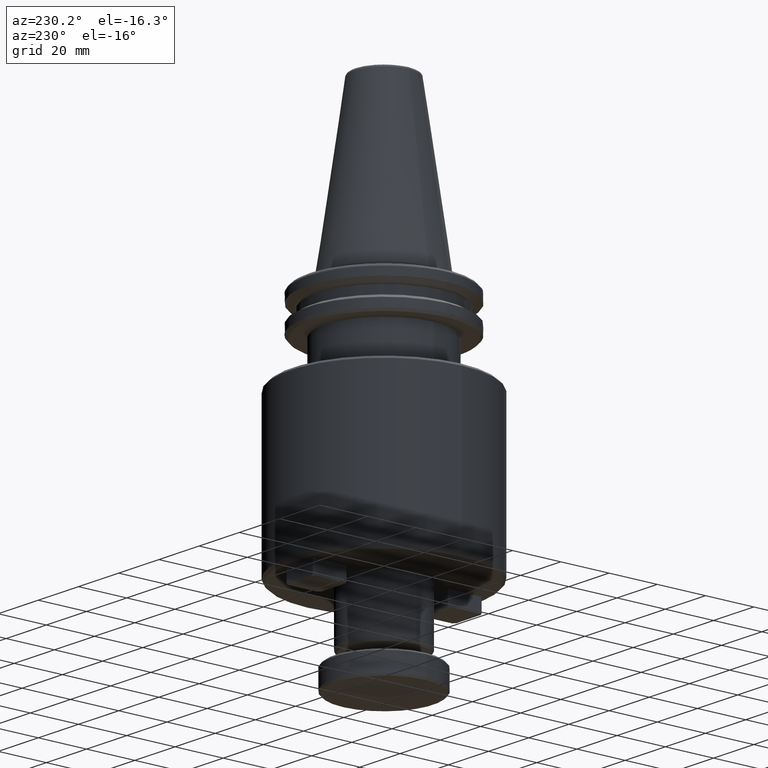
[diagram: clean part render]
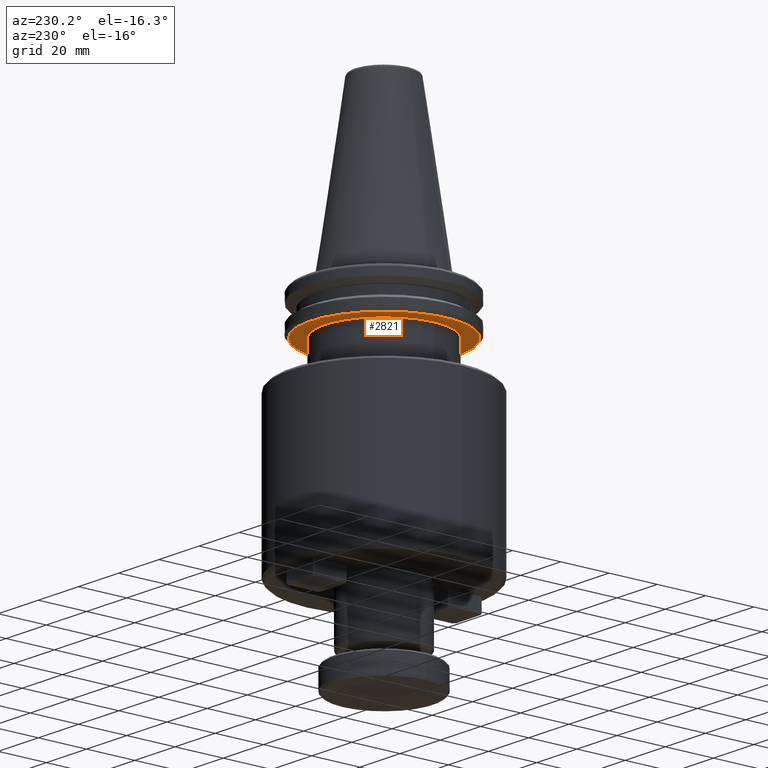
[diagram: same view with one face highlighted and labeled with its STEP entity id]
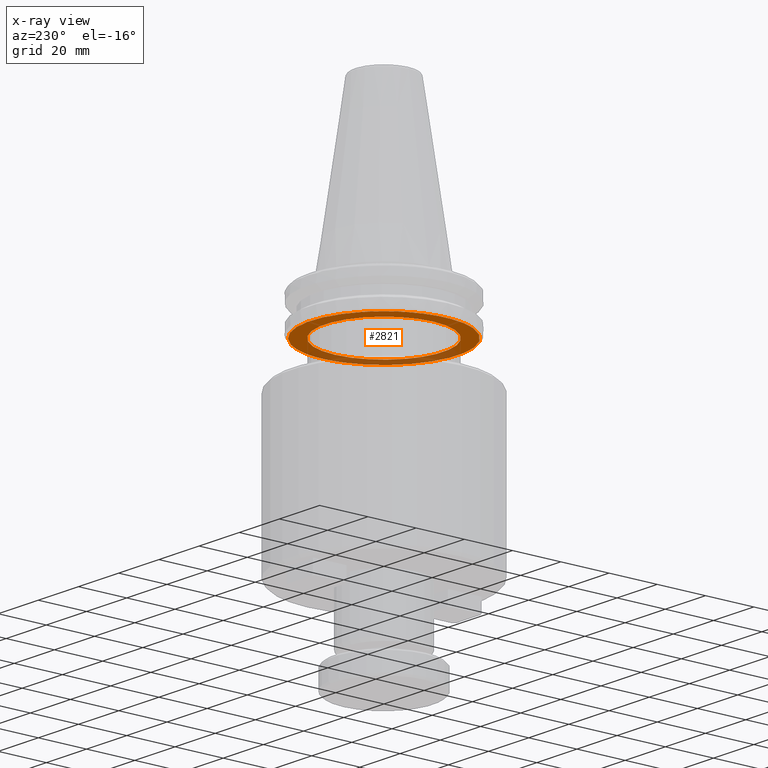
[diagram: x-ray of the same camera — body ghosted, the highlighted face saturated]
A machine part, auxiliary view. The second image highlights one B-rep face of the part: STEP entity #2821.
The next image is the same camera in x-ray: the body ghosted, the highlighted face saturated — about 31% of this face is hidden behind the body in this view.
In plain terms, the highlighted planar face has unit normal (0, 0, -1).
Its self-contained STEP definition (entity closure, byte-faithful):
#5 = CARTESIAN_POINT ( 'NONE',  ( -28.55403585648227600, -11.07200170706531000, -19.10000000000000100 ) ) ;
#9 = CARTESIAN_POINT ( 'NONE',  ( 28.79848820868595600, 10.36927195262887700, -19.10000000000000500 ) ) ;
#18 = CARTESIAN_POINT ( 'NONE',  ( 27.46611760510352000, 13.47920850658973700, -19.10000000000000900 ) ) ;
#60 = CARTESIAN_POINT ( 'NONE',  ( 5.798126224598956200, 30.03039269424756300, -19.10000000000000100 ) ) ;
#77 = CARTESIAN_POINT ( 'NONE',  ( -29.50593695887968700, 8.050011640415894100, -19.09999999877758000 ) ) ;
#79 = EDGE_CURVE ( 'NONE', #3242, #691, #2342, .T. ) ;
#102 = EDGE_CURVE ( 'NONE', #1239, #1651, #3035, .T. ) ;
#108 = CARTESIAN_POINT ( 'NONE',  ( 6.256069620680725600, 29.93772805485906800, -19.10000000000000900 ) ) ;
#130 = CARTESIAN_POINT ( 'NONE',  ( 0.0000000000000000000, 2.166680460328873200E-015, -19.10000000000000500 ) ) ;
#150 = CARTESIAN_POINT ( 'NONE',  ( -17.51886799372202900, 25.09995254383747500, -19.10000000000000500 ) ) ;
#167 = CARTESIAN_POINT ( 'NONE',  ( -29.50593695887968700, 8.050011640415894100, -19.09999999877758000 ) ) ;
#192 = B_SPLINE_CURVE_WITH_KNOTS ( 'NONE', 3,
 ( #3825, #150, #2657, #3818, #2882, #2408, #3834, #3499, #3605, #3476, #3909, #1616, #3015, #2294, #1503, #3145, #1476, #2312, #1535, #1157, #2358, #2931, #3758, #1837, #3505, #2247, #3094, #4167, #1391, #4050, #983, #1195, #308, #60, #3748, #2814, #108, #2239, #2172, #3416, #2524, #3188, #3197, #2049, #4151, #3828, #4121, #3276, #2434, #1027, #848, #3872, #1806, #3529, #4135, #3492, #3620, #1887, #1093, #1444, #2538, #2837, #3241, #3366, #4053, #2576, #1172, #4180, #255, #3904, #3388, #4204, #3454, #3485, #3810, #18, #3284, #3444, #3357, #3379, #4262, #9, #3814, #3498 ),
 .UNSPECIFIED., .F., .F.,
 ( 4, 1, 1, 1, 1, 2, 2, 1, 1, 2, 2, 2, 1, 1, 2, 2, 1, 1, 1, 2, 2, 1, 1, 1, 2, 2, 2, 1, 1, 1, 2, 2, 1, 1, 1, 2, 2, 1, 1, 2, 2, 2, 1, 1, 2, 2, 1, 1, 1, 2, 2, 1, 1, 1, 2, 2, 4 ),
 ( 0.0000000000000000000, 0.06250000000000043000, 0.09375000000000063800, 0.1093750000000007500, 0.1171875000000008000, 0.1210937500000008700, 0.1250000000000009400, 0.1562500000000016900, 0.1718750000000020300, 0.1796875000000022200, 0.1875000000000024100, 0.2500000000000042200, 0.2812500000000051600, 0.2968750000000056100, 0.3046875000000058300, 0.3125000000000060500, 0.3437500000000069400, 0.3593750000000073800, 0.3671875000000076100, 0.3710937500000076600, 0.3750000000000077700, 0.4062500000000085500, 0.4218750000000089900, 0.4296875000000092100, 0.4335937500000093800, 0.4375000000000094900, 0.5000000000000109900, 0.5312500000000117700, 0.5468750000000121000, 0.5546875000000122100, 0.5585937500000123200, 0.5625000000000123200, 0.5937500000000121000, 0.6093750000000119900, 0.6171875000000117700, 0.6210937500000117700, 0.6250000000000116600, 0.6562500000000113200, 0.6718750000000111000, 0.6796875000000108800, 0.6875000000000107700, 0.7500000000000093300, 0.7812500000000086600, 0.7968750000000082200, 0.8046875000000079900, 0.8125000000000076600, 0.8437500000000067700, 0.8593750000000063300, 0.8671875000000061100, 0.8710937500000060000, 0.8750000000000058800, 0.9062500000000048800, 0.9218750000000044400, 0.9296875000000043300, 0.9335937500000041100, 0.9375000000000038900, 1.000000000000000000 ),
 .UNSPECIFIED. ) ;
#195 = EDGE_CURVE ( 'NONE', #324, #3242, #1668, .T. ) ;
#250 = CARTESIAN_POINT ( 'NONE',  ( 27.01453231070431500, -14.38112937620777400, -19.10000000000000900 ) ) ;
#255 = CARTESIAN_POINT ( 'NONE',  ( 25.60981177358732800, 16.74023069123413500, -19.10000000000000500 ) ) ;
#260 = CARTESIAN_POINT ( 'NONE',  ( 22.45416143053250800, -20.76589565598027000, -19.10000000000000500 ) ) ;
#281 = CARTESIAN_POINT ( 'NONE',  ( 10.24327173504158100, -28.81937833701286400, -19.10000000000000500 ) ) ;
#294 = CARTESIAN_POINT ( 'NONE',  ( 3.166151006705770800, -30.46140382597060600, -19.10000000000001200 ) ) ;
#303 = B_SPLINE_CURVE_WITH_KNOTS ( 'NONE', 3,
 ( #77, #3423, #2773, #760, #3115, #1114 ),
 .UNSPECIFIED., .F., .F.,
 ( 4, 2, 4 ),
 ( 0.0000000000000000000, 0.5000000000000000000, 1.000000000000000000 ),
 .UNSPECIFIED. ) ;
#306 = CARTESIAN_POINT ( 'NONE',  ( -8.850750154841392700, -29.27696876187939500, -19.10000000000000500 ) ) ;
#308 = CARTESIAN_POINT ( 'NONE',  ( 5.264802480930863600, 30.13058555675097900, -19.10000000000000100 ) ) ;
#322 = CARTESIAN_POINT ( 'NONE',  ( -17.19359987793792800, -25.35249706495551100, -19.10000000000000900 ) ) ;
#324 = VERTEX_POINT ( 'NONE', #1029 ) ;
#340 = CARTESIAN_POINT ( 'NONE',  ( -25.40531514043783900, -17.02859819238312900, -19.10000000000000500 ) ) ;
#359 = CARTESIAN_POINT ( 'NONE',  ( -29.50593695887968700, -8.050011640415892300, -19.09999999877758000 ) ) ;
#416 = DIRECTION ( 'NONE',  ( 1.000000000000000000, 0.0000000000000000000, 0.0000000000000000000 ) ) ;
#422 = CARTESIAN_POINT ( 'NONE',  ( 0.0000000000000000000, 0.0000000000000000000, -19.10000000000000500 ) ) ;
#445 = DIRECTION ( 'NONE',  ( -0.0000000000000000000, -0.0000000000000000000, -1.000000000000000000 ) ) ;
#480 = DIRECTION ( 'NONE',  ( -1.000000000000000000, 0.0000000000000000000, -0.0000000000000000000 ) ) ;
#510 = CARTESIAN_POINT ( 'NONE',  ( 29.50593695887965900, 8.050011640415990000, -19.09999999877758000 ) ) ;
#594 = CARTESIAN_POINT ( 'NONE',  ( 25.91506848432963000, -16.24456535706762800, -19.10000000000000500 ) ) ;
#608 = CARTESIAN_POINT ( 'NONE',  ( 19.93308098988654800, -23.26029377377305400, -19.10000000000000900 ) ) ;
#618 = CARTESIAN_POINT ( 'NONE',  ( 9.741308101238560700, -28.99155239477984500, -19.10000000000000900 ) ) ;
#630 = CARTESIAN_POINT ( 'NONE',  ( -0.7936655208069568500, -30.58432798036122000, -19.10000000000000100 ) ) ;
#646 = CARTESIAN_POINT ( 'NONE',  ( -9.343182468531940900, -29.12229317852812500, -19.10000000000000500 ) ) ;
#658 = CARTESIAN_POINT ( 'NONE',  ( -20.23907096310340100, -22.95838911900774100, -19.10000000000000500 ) ) ;
#669 = CARTESIAN_POINT ( 'NONE',  ( -25.49448276515892400, -16.89479980230323600, -19.10000000000000900 ) ) ;
#691 = VERTEX_POINT ( 'NONE', #510 ) ;
#760 = CARTESIAN_POINT ( 'NONE',  ( -26.56612284950205100, 15.28016086959555500, -19.10000000000000500 ) ) ;
#792 = PLANE ( 'NONE',  #1988 ) ;
#803 = DIRECTION ( 'NONE',  ( 1.000000000000000000, 0.0000000000000000000, 0.0000000000000000000 ) ) ;
#839 = AXIS2_PLACEMENT_3D ( 'NONE', #3671, #3884, #3900 ) ;
#848 = CARTESIAN_POINT ( 'NONE',  ( 16.18968749047009200, 25.94803225022423700, -19.10000000000000900 ) ) ;
#857 = CIRCLE ( 'NONE', #839, 24.50000000000000000 ) ;
#923 = CARTESIAN_POINT ( 'NONE',  ( 29.50593695887968700, -8.050011640415894100, -19.09999999877758000 ) ) ;
#935 = CARTESIAN_POINT ( 'NONE',  ( 25.63623530936496000, -16.67892256050461000, -19.10000000000000500 ) ) ;
#944 = CARTESIAN_POINT ( 'NONE',  ( 16.82180190648200500, -25.56823429586928900, -19.10000000000000500 ) ) ;
#963 = CARTESIAN_POINT ( 'NONE',  ( 9.588757991871142700, -29.04235927048969000, -19.10000000000000100 ) ) ;
#975 = CARTESIAN_POINT ( 'NONE',  ( 24.50000000000000000, 0.0000000000000000000, -19.10000000000000500 ) ) ;
#981 = CARTESIAN_POINT ( 'NONE',  ( -3.359542261740482900, -30.40384640239971500, -19.10000000000000500 ) ) ;
#983 = CARTESIAN_POINT ( 'NONE',  ( 3.271282400886674800, 30.41520625110938200, -19.10000000000000500 ) ) ;
#984 = CIRCLE ( 'NONE', #1962, 30.58435880040995200 ) ;
#995 = CARTESIAN_POINT ( 'NONE',  ( -9.489238364085435900, -29.07503083623364400, -19.10000000000000900 ) ) ;
#1004 = CARTESIAN_POINT ( 'NONE',  ( -21.86129013470800300, -21.39082914621904400, -19.10000000000000100 ) ) ;
#1023 = CARTESIAN_POINT ( 'NONE',  ( -26.61736808516047900, -15.10355864978086500, -19.10000000000000500 ) ) ;
#1027 = CARTESIAN_POINT ( 'NONE',  ( 15.99211500375794700, 26.07096171698068000, -19.10000000000000900 ) ) ;
#1029 = CARTESIAN_POINT ( 'NONE',  ( 29.50593695887968700, -8.050011640415894100, -19.09999999877758000 ) ) ;
#1093 = CARTESIAN_POINT ( 'NONE',  ( 19.38055795302008400, 23.66050113822976500, -19.10000000000001200 ) ) ;
#1103 = EDGE_LOOP ( 'NONE', ( #4044, #2639, #3507, #3929, #1299, #1295, #1330 ) ) ;
#1114 = CARTESIAN_POINT ( 'NONE',  ( -24.35471234555324600, 18.50002675126633300, -19.09999999877758000 ) ) ;
#1122 = CIRCLE ( 'NONE', #1685, 30.58435880040995200 ) ;
#1157 = CARTESIAN_POINT ( 'NONE',  ( -2.229972106739516000, 30.50583071842478200, -19.10000000000000500 ) ) ;
#1172 = CARTESIAN_POINT ( 'NONE',  ( 24.61278002360990800, 18.15588099004128300, -19.10000000000000500 ) ) ;
#1195 = CARTESIAN_POINT ( 'NONE',  ( 4.194626064597124500, 30.30646449917461300, -19.10000000000000500 ) ) ;
#1239 = VERTEX_POINT ( 'NONE', #975 ) ;
#1268 = CARTESIAN_POINT ( 'NONE',  ( 28.44748858146412100, -11.24368615697392600, -19.10000000000000100 ) ) ;
#1277 = CARTESIAN_POINT ( 'NONE',  ( 25.55219655712748800, -16.80738867178014600, -19.10000000000000900 ) ) ;
#1295 = ORIENTED_EDGE ( 'NONE', *, *, #79, .F. ) ;
#1298 = CARTESIAN_POINT ( 'NONE',  ( 14.88253584773120200, -26.72066063288397000, -19.10000000000000100 ) ) ;
#1299 = ORIENTED_EDGE ( 'NONE', *, *, #2507, .T. ) ;
#1307 = CARTESIAN_POINT ( 'NONE',  ( 7.565125950941371100, -29.65418414010071800, -19.10000000000000500 ) ) ;
#1317 = CARTESIAN_POINT ( 'NONE',  ( -4.391022105728267500, -30.26774995785368500, -19.10000000000000500 ) ) ;
#1330 = ORIENTED_EDGE ( 'NONE', *, *, #195, .F. ) ;
#1332 = CARTESIAN_POINT ( 'NONE',  ( -11.53725264662773900, -28.34718016712044900, -19.10000000000000900 ) ) ;
#1351 = CARTESIAN_POINT ( 'NONE',  ( -22.23347045905034500, -21.00201711043238700, -19.10000000000000100 ) ) ;
#1365 = CARTESIAN_POINT ( 'NONE',  ( -27.60161413460691900, -13.17678050942531300, -19.10000000000001200 ) ) ;
#1391 = CARTESIAN_POINT ( 'NONE',  ( 2.495993614183678500, 30.48239565653807800, -19.10000000000000500 ) ) ;
#1401 = CARTESIAN_POINT ( 'NONE',  ( -24.35471234555324600, 18.50002675126633300, -19.09999999877758000 ) ) ;
#1441 = CARTESIAN_POINT ( 'NONE',  ( -18.50002675126633300, 24.35471234555324600, -19.09999999877758000 ) ) ;
#1444 = CARTESIAN_POINT ( 'NONE',  ( 20.48123999505939400, 22.74936446789017100, -19.10000000000000100 ) ) ;
#1448 = CARTESIAN_POINT ( 'NONE',  ( -24.50000000000000000, 3.000384657911015500E-015, -19.10000000000000500 ) ) ;
#1476 = CARTESIAN_POINT ( 'NONE',  ( -6.159607642682074100, 29.98451923137153200, -19.10000000000000500 ) ) ;
#1503 = CARTESIAN_POINT ( 'NONE',  ( -8.767786026824518700, 29.30104552520869300, -19.10000000000000500 ) ) ;
#1535 = CARTESIAN_POINT ( 'NONE',  ( -3.335826507667983200, 30.41349938460541600, -19.10000000000000100 ) ) ;
#1565 = EDGE_CURVE ( 'NONE', #1651, #1239, #857, .T. ) ;
#1595 = CARTESIAN_POINT ( 'NONE',  ( 28.04473044301726900, -12.20290262157235800, -19.10000000000000100 ) ) ;
#1613 = CARTESIAN_POINT ( 'NONE',  ( 24.31095900104777700, -18.59161355311120500, -19.10000000000000900 ) ) ;
#1616 = CARTESIAN_POINT ( 'NONE',  ( -9.668279344121133400, 29.01896080072954100, -19.10000000000000500 ) ) ;
#1624 = AXIS2_PLACEMENT_3D ( 'NONE', #422, #445, #416 ) ;
#1627 = CARTESIAN_POINT ( 'NONE',  ( 14.40947314747780600, -26.97737969063206300, -19.10000000000000500 ) ) ;
#1635 = CARTESIAN_POINT ( 'NONE',  ( 5.447226833889317300, -30.09658397973939300, -19.10000000000000500 ) ) ;
#1639 = DIRECTION ( 'NONE',  ( -0.0000000000000000000, -0.0000000000000000000, 1.000000000000000000 ) ) ;
#1646 = CARTESIAN_POINT ( 'NONE',  ( 0.0000000000000000000, 0.0000000000000000000, -19.09999999877758000 ) ) ;
#1651 = VERTEX_POINT ( 'NONE', #1448 ) ;
#1655 = CARTESIAN_POINT ( 'NONE',  ( -4.636279539811212700, -30.23090493186514000, -19.10000000000000100 ) ) ;
#1665 = DIRECTION ( 'NONE',  ( -0.0000000000000000000, -0.0000000000000000000, 1.000000000000000000 ) ) ;
#1667 = DIRECTION ( 'NONE',  ( 1.000000000000000000, 0.0000000000000000000, 0.0000000000000000000 ) ) ;
#1668 = CIRCLE ( 'NONE', #3261, 30.58435880040995200 ) ;
#1671 = CARTESIAN_POINT ( 'NONE',  ( -13.55750927079556900, -27.41669403125807100, -19.10000000000000500 ) ) ;
#1684 = CARTESIAN_POINT ( 'NONE',  ( -22.95981042903576300, -20.22301021334099100, -19.10000000000000900 ) ) ;
#1685 = AXIS2_PLACEMENT_3D ( 'NONE', #3740, #1665, #3789 ) ;
#1700 = CARTESIAN_POINT ( 'NONE',  ( -27.81895210720312800, -12.70861568514636500, -19.10000000000000500 ) ) ;
#1806 = CARTESIAN_POINT ( 'NONE',  ( 16.38572052405262600, 25.82468945861612000, -19.10000000000000100 ) ) ;
#1837 = CARTESIAN_POINT ( 'NONE',  ( -0.4908188656923748200, 30.58687863642091600, -19.10000000000000900 ) ) ;
#1887 = CARTESIAN_POINT ( 'NONE',  ( 19.25930180620994000, 23.75930152089461000, -19.10000000000001200 ) ) ;
#1926 = CARTESIAN_POINT ( 'NONE',  ( 27.94464134489557200, -12.42979159005786200, -19.10000000000001200 ) ) ;
#1933 = CARTESIAN_POINT ( 'NONE',  ( 22.88153702451384300, -20.29572449130178000, -19.10000000000000100 ) ) ;
#1950 = CARTESIAN_POINT ( 'NONE',  ( 13.46675684607612000, -27.47306857769193300, -19.10000000000000900 ) ) ;
#1962 = AXIS2_PLACEMENT_3D ( 'NONE', #4152, #3567, #1667 ) ;
#1967 = CARTESIAN_POINT ( 'NONE',  ( 4.938364931540699700, -30.18303432026915800, -19.10000000000000500 ) ) ;
#1984 = CARTESIAN_POINT ( 'NONE',  ( -5.550699401406691700, -30.08776695510170300, -19.10000000000000500 ) ) ;
#1988 = AXIS2_PLACEMENT_3D ( 'NONE', #130, #2488, #480 ) ;
#1995 = CARTESIAN_POINT ( 'NONE',  ( -14.03061632106972200, -27.17633901377901000, -19.10000000000000900 ) ) ;
#2017 = CARTESIAN_POINT ( 'NONE',  ( -24.67913322280990200, -18.07380832753302600, -19.10000000000000500 ) ) ;
#2033 = CARTESIAN_POINT ( 'NONE',  ( -27.88382002489398900, -12.56563911166203700, -19.10000000000000900 ) ) ;
#2049 = CARTESIAN_POINT ( 'NONE',  ( 12.92802695592982500, 27.71772311958008600, -19.10000000000000900 ) ) ;
#2121 = FACE_OUTER_BOUND ( 'NONE', #1103, .T. ) ;
#2162 = VERTEX_POINT ( 'NONE', #3723 ) ;
#2172 = CARTESIAN_POINT ( 'NONE',  ( 8.686726280910074000, 29.34982920450148600, -19.10000000000000900 ) ) ;
#2239 = CARTESIAN_POINT ( 'NONE',  ( 7.517538265328743900, 29.67087649393396000, -19.10000000000000500 ) ) ;
#2247 = CARTESIAN_POINT ( 'NONE',  ( 1.553459315967854200, 30.54770834860802300, -19.10000000000000900 ) ) ;
#2257 = CARTESIAN_POINT ( 'NONE',  ( 27.56587331839861600, -13.27428387458943800, -19.09999999999999800 ) ) ;
#2273 = CARTESIAN_POINT ( 'NONE',  ( 22.52513206187470700, -20.68888644021010800, -19.10000000000000900 ) ) ;
#2292 = CARTESIAN_POINT ( 'NONE',  ( 10.94079956306805100, -28.56608249322954800, -19.10000000000000900 ) ) ;
#2294 = CARTESIAN_POINT ( 'NONE',  ( -8.917516567687371800, 29.25582015750815400, -19.10000000000000500 ) ) ;
#2304 = CARTESIAN_POINT ( 'NONE',  ( 4.783350766199017600, -30.20798338819395200, -19.10000000000000500 ) ) ;
#2312 = CARTESIAN_POINT ( 'NONE',  ( -4.279122215993030700, 30.29015284362106900, -19.10000000000000500 ) ) ;
#2318 = CARTESIAN_POINT ( 'NONE',  ( -8.158427338735364700, -29.48125659895528400, -19.10000000000000500 ) ) ;
#2333 = CARTESIAN_POINT ( 'NONE',  ( -15.74490649238654400, -26.27680638947031300, -19.10000000000000900 ) ) ;
#2342 = CIRCLE ( 'NONE', #2483, 30.58435880040995200 ) ;
#2351 = CARTESIAN_POINT ( 'NONE',  ( -25.31652938757393300, -17.16082103678996200, -19.10000000000000100 ) ) ;
#2358 = CARTESIAN_POINT ( 'NONE',  ( -1.754889633223906300, 30.53434994063401200, -19.10000000000000500 ) ) ;
#2362 = CARTESIAN_POINT ( 'NONE',  ( -29.08795742227681900, -9.581875916355663500, -19.09999999999999800 ) ) ;
#2373 = EDGE_CURVE ( 'NONE', #4273, #4184, #1122, .T. ) ;
#2393 = ORIENTED_EDGE ( 'NONE', *, *, #102, .F. ) ;
#2408 = CARTESIAN_POINT ( 'NONE',  ( -12.65743148084894200, 27.84302147053579500, -19.10000000000000500 ) ) ;
#2434 = CARTESIAN_POINT ( 'NONE',  ( 15.52813128130545700, 26.35237235011442500, -19.10000000000000900 ) ) ;
#2483 = AXIS2_PLACEMENT_3D ( 'NONE', #1646, #1639, #803 ) ;
#2488 = DIRECTION ( 'NONE',  ( 0.0000000000000000000, 0.0000000000000000000, -1.000000000000000000 ) ) ;
#2507 = EDGE_CURVE ( 'NONE', #4273, #691, #192, .T. ) ;
#2514 = DIRECTION ( 'NONE',  ( 1.000000000000000000, 0.0000000000000000000, 0.0000000000000000000 ) ) ;
#2517 = DIRECTION ( 'NONE',  ( -0.0000000000000000000, -0.0000000000000000000, 1.000000000000000000 ) ) ;
#2524 = CARTESIAN_POINT ( 'NONE',  ( 11.26206975055332500, 28.44666309692501500, -19.10000000000000100 ) ) ;
#2538 = CARTESIAN_POINT ( 'NONE',  ( 21.40627702113345900, 21.88112117654264600, -19.10000000000000500 ) ) ;
#2540 = CARTESIAN_POINT ( 'NONE',  ( 0.0000000000000000000, 0.0000000000000000000, -19.09999999877758000 ) ) ;
#2573 = ORIENTED_EDGE ( 'NONE', *, *, #1565, .F. ) ;
#2576 = CARTESIAN_POINT ( 'NONE',  ( 24.51742230446014800, 18.28446092688399100, -19.10000000000000500 ) ) ;
#2595 = EDGE_CURVE ( 'NONE', #3313, #2162, #984, .T. ) ;
#2605 = CARTESIAN_POINT ( 'NONE',  ( 26.29437709911257700, -15.63042418696883700, -19.10000000000000500 ) ) ;
#2617 = CARTESIAN_POINT ( 'NONE',  ( 21.20610461385350800, -22.10596665135101400, -19.10000000000000100 ) ) ;
#2625 = CARTESIAN_POINT ( 'NONE',  ( 9.892237708290188900, -28.94069923155255000, -19.10000000000000500 ) ) ;
#2639 = ORIENTED_EDGE ( 'NONE', *, *, #2595, .F. ) ;
#2642 = CARTESIAN_POINT ( 'NONE',  ( 1.587331041613742700, -30.58428776442982800, -19.10000000000000500 ) ) ;
#2657 = CARTESIAN_POINT ( 'NONE',  ( -15.99112436415940900, 26.12219316515105300, -19.10000000000000900 ) ) ;
#2660 = CARTESIAN_POINT ( 'NONE',  ( -9.195643051181685100, -29.16949528698672400, -19.10000000000000900 ) ) ;
#2671 = CARTESIAN_POINT ( 'NONE',  ( -19.24823797460855300, -23.78338029378941300, -19.10000000000001200 ) ) ;
#2689 = CARTESIAN_POINT ( 'NONE',  ( -25.46428937167067700, -16.94027857338939600, -19.10000000000000500 ) ) ;
#2773 = CARTESIAN_POINT ( 'NONE',  ( -28.29883549210119800, 11.76494105805098300, -19.10000000000000500 ) ) ;
#2780 = B_SPLINE_CURVE_WITH_KNOTS ( 'NONE', 3,
 ( #923, #2929, #3246, #1268, #3574, #1595, #3870, #1926, #4193, #2257, #250, #2605, #594, #2939, #935, #3265, #1277, #3580, #1613, #3885, #1933, #4208, #2273, #260, #2617, #608, #2955, #944, #3280, #1298, #3591, #1627, #3901, #1950, #4215, #2292, #281, #2625, #618, #2975, #963, #3290, #1307, #3611, #1635, #3913, #1967, #4231, #2304, #294, #2642, #630, #2988, #981, #3306, #1317, #3623, #1655, #3922, #1984, #4247, #2318, #306, #2660, #646, #3000, #995, #3320, #1332, #3634, #1671, #3941, #1995, #4261, #2333, #322, #2671, #658, #3022, #1004, #3334, #1351, #3648, #1684, #3960, #2017, #4272, #2351, #340, #2689, #669, #3038, #1023, #3345, #1365, #3665, #1700, #3974, #2033, #5, #2362, #359 ),
 .UNSPECIFIED., .F., .F.,
 ( 4, 1, 1, 1, 1, 2, 2, 1, 1, 1, 1, 2, 2, 1, 1, 1, 2, 2, 2, 1, 1, 1, 2, 2, 1, 1, 1, 1, 2, 2, 1, 1, 1, 1, 2, 2, 2, 1, 1, 1, 1, 2, 2, 1, 1, 1, 1, 2, 2, 1, 1, 1, 2, 2, 2, 1, 1, 1, 2, 2, 1, 1, 1, 1, 2, 2, 1, 1, 1, 1, 2, 2, 4 ),
 ( 0.0000000000000000000, 0.03125000000000043000, 0.04687500000000063800, 0.05468750000000073600, 0.05859375000000075600, 0.06054687500000074200, 0.06250000000000072200, 0.09375000000000025000, 0.1093750000000000400, 0.1171874999999999200, 0.1210937499999997900, 0.1230468749999997600, 0.1249999999999997400, 0.1562499999999992200, 0.1718749999999989700, 0.1796874999999988600, 0.1835937499999988100, 0.1874999999999987500, 0.2499999999999989500, 0.2812499999999990000, 0.2968749999999991100, 0.3046874999999991700, 0.3085937499999991700, 0.3124999999999991100, 0.3437499999999990600, 0.3593749999999990600, 0.3671874999999990600, 0.3710937499999991100, 0.3730468749999991700, 0.3749999999999991700, 0.4062499999999991100, 0.4218749999999990600, 0.4296874999999990600, 0.4335937499999990600, 0.4355468749999990600, 0.4374999999999990600, 0.4999999999999995000, 0.5312499999999997800, 0.5468749999999998900, 0.5546875000000000000, 0.5585937500000000000, 0.5605468750000001100, 0.5625000000000001100, 0.5937500000000005600, 0.6093750000000007800, 0.6171875000000008900, 0.6210937500000008900, 0.6230468750000008900, 0.6250000000000008900, 0.6562500000000010000, 0.6718750000000010000, 0.6796875000000010000, 0.6835937500000011100, 0.6875000000000011100, 0.7500000000000013300, 0.7812500000000013300, 0.7968750000000013300, 0.8046875000000013300, 0.8085937500000012200, 0.8125000000000012200, 0.8437500000000014400, 0.8593750000000015500, 0.8671875000000015500, 0.8710937500000015500, 0.8730468750000015500, 0.8750000000000015500, 0.9062500000000016700, 0.9218750000000017800, 0.9296875000000017800, 0.9335937500000017800, 0.9355468750000017800, 0.9375000000000017800, 1.000000000000000000 ),
 .UNSPECIFIED. ) ;
#2814 = CARTESIAN_POINT ( 'NONE',  ( 6.178357567779041700, 29.95386665788899800, -19.10000000000000900 ) ) ;
#2821 = ADVANCED_FACE ( 'NONE', ( #3033, #2121 ), #792, .T. ) ;
#2837 = CARTESIAN_POINT ( 'NONE',  ( 22.71169545599505600, 20.49349008205810900, -19.10000000000000900 ) ) ;
#2882 = CARTESIAN_POINT ( 'NONE',  ( -13.14593330072873200, 27.61811721527876200, -19.10000000000000900 ) ) ;
#2929 = CARTESIAN_POINT ( 'NONE',  ( 29.29697359829781100, -8.815762972852718700, -19.10000000000000500 ) ) ;
#2931 = CARTESIAN_POINT ( 'NONE',  ( -1.437913567965121800, 30.55090690001179600, -19.10000000000000900 ) ) ;
#2939 = CARTESIAN_POINT ( 'NONE',  ( 25.72060642469137200, -16.54900938329657500, -19.10000000000000500 ) ) ;
#2955 = CARTESIAN_POINT ( 'NONE',  ( 17.87849741863398000, -24.82948193938068100, -19.10000000000000100 ) ) ;
#2975 = CARTESIAN_POINT ( 'NONE',  ( 9.640580262597561400, -29.02520083562890100, -19.10000000000000500 ) ) ;
#2988 = CARTESIAN_POINT ( 'NONE',  ( -1.980707750522268800, -30.53825656188765000, -19.10000000000000900 ) ) ;
#3000 = CARTESIAN_POINT ( 'NONE',  ( -9.441481674779128100, -29.09057131782455500, -19.10000000000000500 ) ) ;
#3015 = CARTESIAN_POINT ( 'NONE',  ( -9.218324187523917200, 29.16244582629286700, -19.10000000000000100 ) ) ;
#3022 = CARTESIAN_POINT ( 'NONE',  ( -21.33119217829327100, -21.92514203399821300, -19.10000000000000500 ) ) ;
#3033 = FACE_BOUND ( 'NONE', #3741, .T. ) ;
#3035 = CIRCLE ( 'NONE', #1624, 24.50000000000000000 ) ;
#3038 = CARTESIAN_POINT ( 'NONE',  ( -25.97824210456839800, -16.16214345845010000, -19.10000000000000100 ) ) ;
#3094 = CARTESIAN_POINT ( 'NONE',  ( 2.103333420339649000, 30.51262227300270200, -19.10000000000000100 ) ) ;
#3115 = CARTESIAN_POINT ( 'NONE',  ( -25.54018883534800800, 16.93931054832113100, -19.10000000000000500 ) ) ;
#3145 = CARTESIAN_POINT ( 'NONE',  ( -7.396785857642844200, 29.70357443817780300, -19.10000000000000100 ) ) ;
#3188 = CARTESIAN_POINT ( 'NONE',  ( 12.23810548582505600, 28.03197362945626700, -19.10000000000000500 ) ) ;
#3197 = CARTESIAN_POINT ( 'NONE',  ( 12.72171218949350900, 27.81364574513149900, -19.10000000000000900 ) ) ;
#3241 = CARTESIAN_POINT ( 'NONE',  ( 23.34168654117829400, 19.78065602349450500, -19.10000000000000500 ) ) ;
#3242 = VERTEX_POINT ( 'NONE', #4095 ) ;
#3246 = CARTESIAN_POINT ( 'NONE',  ( 28.94006249014968200, -9.948882374008352500, -19.10000000000000500 ) ) ;
#3261 = AXIS2_PLACEMENT_3D ( 'NONE', #2540, #2517, #2514 ) ;
#3265 = CARTESIAN_POINT ( 'NONE',  ( 25.57975895856417400, -16.76540627108043000, -19.10000000000000100 ) ) ;
#3276 = CARTESIAN_POINT ( 'NONE',  ( 14.58823882257053300, 26.89349445919003000, -19.10000000000000500 ) ) ;
#3280 = CARTESIAN_POINT ( 'NONE',  ( 15.53753395421813000, -26.34988902405435600, -19.10000000000000900 ) ) ;
#3284 = CARTESIAN_POINT ( 'NONE',  ( 27.91908508163535500, 12.49379923642603000, -19.10000000000000500 ) ) ;
#3290 = CARTESIAN_POINT ( 'NONE',  ( 8.754606771855487000, -29.31622083907685900, -19.10000000000000100 ) ) ;
#3306 = CARTESIAN_POINT ( 'NONE',  ( -4.047447494820515200, -30.31647627983856800, -19.10000000000000900 ) ) ;
#3313 = VERTEX_POINT ( 'NONE', #167 ) ;
#3320 = CARTESIAN_POINT ( 'NONE',  ( -10.34692081642918300, -28.79347578717342800, -19.10000000000000500 ) ) ;
#3334 = CARTESIAN_POINT ( 'NONE',  ( -22.08505440506140600, -21.15804733461203200, -19.10000000000000100 ) ) ;
#3345 = CARTESIAN_POINT ( 'NONE',  ( -27.28631539589520500, -13.82611176813281700, -19.10000000000000500 ) ) ;
#3357 = CARTESIAN_POINT ( 'NONE',  ( 28.22432639104233900, 11.78107541670503600, -19.10000000000000500 ) ) ;
#3366 = CARTESIAN_POINT ( 'NONE',  ( 24.03691940912555600, 18.91573389369128600, -19.10000000000000500 ) ) ;
#3379 = CARTESIAN_POINT ( 'NONE',  ( 28.28372968616552200, 11.63773453184817400, -19.10000000000000900 ) ) ;
#3388 = CARTESIAN_POINT ( 'NONE',  ( 26.46695125748617600, 15.32790333300081500, -19.10000000000000900 ) ) ;
#3416 = CARTESIAN_POINT ( 'NONE',  ( 10.41034370100355100, 28.76445469558826700, -19.10000000000000500 ) ) ;
#3423 = CARTESIAN_POINT ( 'NONE',  ( -28.99013299704189700, 9.940434568560412700, -19.10000000000000100 ) ) ;
#3444 = CARTESIAN_POINT ( 'NONE',  ( 28.13442549670037700, 11.99570152419388200, -19.10000000000000500 ) ) ;
#3454 = CARTESIAN_POINT ( 'NONE',  ( 26.66158410836062100, 14.98553842598051500, -19.10000000000000500 ) ) ;
#3476 = CARTESIAN_POINT ( 'NONE',  ( -11.58667819376902100, 28.31160413811162600, -19.10000000000000900 ) ) ;
#3485 = CARTESIAN_POINT ( 'NONE',  ( 26.70070361132738800, 14.91571867381870400, -19.10000000000000100 ) ) ;
#3492 = CARTESIAN_POINT ( 'NONE',  ( 18.64294495310518600, 24.24904771131965500, -19.10000000000000900 ) ) ;
#3498 = CARTESIAN_POINT ( 'NONE',  ( 29.50593695887965900, 8.050011640415990000, -19.09999999877758000 ) ) ;
#3499 = CARTESIAN_POINT ( 'NONE',  ( -12.30602042319770800, 27.99943186576027500, -19.10000000000001600 ) ) ;
#3505 = CARTESIAN_POINT ( 'NONE',  ( 0.4531822849060669900, 30.59235866177671400, -19.10000000000000500 ) ) ;
#3507 = ORIENTED_EDGE ( 'NONE', *, *, #4280, .T. ) ;
#3529 = CARTESIAN_POINT ( 'NONE',  ( 16.98334930198293300, 25.44334661411777900, -19.10000000000000500 ) ) ;
#3567 = DIRECTION ( 'NONE',  ( -0.0000000000000000000, -0.0000000000000000000, 1.000000000000000000 ) ) ;
#3574 = CARTESIAN_POINT ( 'NONE',  ( 28.18215722315982000, -11.88429583552771100, -19.10000000000000100 ) ) ;
#3580 = CARTESIAN_POINT ( 'NONE',  ( 25.05482143306667100, -17.56072154682019400, -19.10000000000000500 ) ) ;
#3591 = CARTESIAN_POINT ( 'NONE',  ( 14.59906577416073300, -26.87526508911176700, -19.10000000000000500 ) ) ;
#3605 = CARTESIAN_POINT ( 'NONE',  ( -12.23711360209160000, 28.02961778932873900, -19.10000000000000900 ) ) ;
#3611 = CARTESIAN_POINT ( 'NONE',  ( 6.156651080568798800, -29.96331126530298800, -19.10000000000000500 ) ) ;
#3620 = CARTESIAN_POINT ( 'NONE',  ( 19.01361294775681200, 23.95638265829615000, -19.09999999999999800 ) ) ;
#3623 = CARTESIAN_POINT ( 'NONE',  ( -4.538187366338957100, -30.24578697828068400, -19.10000000000000100 ) ) ;
#3634 = CARTESIAN_POINT ( 'NONE',  ( -12.89007364166148800, -27.74109120042835400, -19.10000000000000100 ) ) ;
#3648 = CARTESIAN_POINT ( 'NONE',  ( -22.30836331049845400, -20.92243750512144400, -19.10000000000000500 ) ) ;
#3665 = CARTESIAN_POINT ( 'NONE',  ( -27.75446977479884200, -12.84946292560067400, -19.10000000000000100 ) ) ;
#3671 = CARTESIAN_POINT ( 'NONE',  ( 0.0000000000000000000, 0.0000000000000000000, -19.10000000000000500 ) ) ;
#3723 = CARTESIAN_POINT ( 'NONE',  ( -29.50593695887968700, -8.050011640415892300, -19.09999999877758000 ) ) ;
#3740 = CARTESIAN_POINT ( 'NONE',  ( 0.0000000000000000000, 0.0000000000000000000, -19.09999999877758000 ) ) ;
#3741 = EDGE_LOOP ( 'NONE', ( #2393, #2573 ) ) ;
#3748 = CARTESIAN_POINT ( 'NONE',  ( 6.026315443778401900, 29.98482716932647900, -19.10000000000000500 ) ) ;
#3758 = CARTESIAN_POINT ( 'NONE',  ( -1.277990131494122400, 30.55800543620354400, -19.10000000000000500 ) ) ;
#3789 = DIRECTION ( 'NONE',  ( 1.000000000000000000, 0.0000000000000000000, 0.0000000000000000000 ) ) ;
#3810 = CARTESIAN_POINT ( 'NONE',  ( 27.03965408853028400, 14.30535447364331600, -19.10000000000000100 ) ) ;
#3814 = CARTESIAN_POINT ( 'NONE',  ( 29.18634062978594200, 9.221269143563914000, -19.10000000000000500 ) ) ;
#3818 = CARTESIAN_POINT ( 'NONE',  ( -14.11067696108144500, 27.14738034496676300, -19.10000000000000500 ) ) ;
#3825 = CARTESIAN_POINT ( 'NONE',  ( -18.50002675126633300, 24.35471234555324600, -19.09999999877758000 ) ) ;
#3828 = CARTESIAN_POINT ( 'NONE',  ( 13.13240365255261600, 27.62148087363473100, -19.10000000000000500 ) ) ;
#3834 = CARTESIAN_POINT ( 'NONE',  ( -12.44675998882116000, 27.93716668423903100, -19.10000000000000500 ) ) ;
#3870 = CARTESIAN_POINT ( 'NONE',  ( 27.98481301560113700, -12.33908451847029400, -19.10000000000000500 ) ) ;
#3872 = CARTESIAN_POINT ( 'NONE',  ( 16.32111855271079600, 25.86556262578678700, -19.10000000000000100 ) ) ;
#3884 = DIRECTION ( 'NONE',  ( -0.0000000000000000000, -0.0000000000000000000, -1.000000000000000000 ) ) ;
#3885 = CARTESIAN_POINT ( 'NONE',  ( 23.37016937102523100, -19.73720656645907200, -19.10000000000000500 ) ) ;
#3900 = DIRECTION ( 'NONE',  ( 1.000000000000000000, 0.0000000000000000000, 0.0000000000000000000 ) ) ;
#3901 = CARTESIAN_POINT ( 'NONE',  ( 14.31298725537405200, -27.02868588326913700, -19.10000000000000500 ) ) ;
#3904 = CARTESIAN_POINT ( 'NONE',  ( 26.18838791784893500, 15.80329267786272900, -19.10000000000000500 ) ) ;
#3909 = CARTESIAN_POINT ( 'NONE',  ( -10.70938079741142000, 28.66019770656558000, -19.10000000000000100 ) ) ;
#3913 = CARTESIAN_POINT ( 'NONE',  ( 5.091218007676277900, -30.15789762491641200, -19.10000000000000900 ) ) ;
#3922 = CARTESIAN_POINT ( 'NONE',  ( -4.683322544848318900, -30.22365628541788900, -19.10000000000000500 ) ) ;
#3929 = ORIENTED_EDGE ( 'NONE', *, *, #2373, .F. ) ;
#3941 = CARTESIAN_POINT ( 'NONE',  ( -13.84162992577100000, -27.27309109750847700, -19.10000000000000500 ) ) ;
#3960 = CARTESIAN_POINT ( 'NONE',  ( -23.78688261721307700, -19.25759772824421400, -19.10000000000000100 ) ) ;
#3974 = CARTESIAN_POINT ( 'NONE',  ( -27.86171205598864400, -12.61459124129725500, -19.10000000000000100 ) ) ;
#4044 = ORIENTED_EDGE ( 'NONE', *, *, #4141, .T. ) ;
#4050 = CARTESIAN_POINT ( 'NONE',  ( 2.575749856820219300, 30.47575675141769800, -19.10000000000000500 ) ) ;
#4053 = CARTESIAN_POINT ( 'NONE',  ( 24.32635705293869000, 18.53792103917297500, -19.10000000000000100 ) ) ;
#4095 = CARTESIAN_POINT ( 'NONE',  ( 30.58435880040729400, 0.0000000000000000000, -19.09999999877758000 ) ) ;
#4121 = CARTESIAN_POINT ( 'NONE',  ( 13.76217383423211000, 27.32011485464017000, -19.10000000000000500 ) ) ;
#4135 = CARTESIAN_POINT ( 'NONE',  ( 17.76311001678113400, 24.91123626348944600, -19.10000000000000100 ) ) ;
#4141 = EDGE_CURVE ( 'NONE', #324, #2162, #2780, .T. ) ;
#4151 = CARTESIAN_POINT ( 'NONE',  ( 13.06536007812701200, 27.65325169537482700, -19.10000000000000100 ) ) ;
#4152 = CARTESIAN_POINT ( 'NONE',  ( 0.0000000000000000000, 0.0000000000000000000, -19.09999999877758000 ) ) ;
#4167 = CARTESIAN_POINT ( 'NONE',  ( 2.338937091250613300, 30.49485090081023100, -19.10000000000000100 ) ) ;
#4180 = CARTESIAN_POINT ( 'NONE',  ( 25.07711885281372900, 17.51959354323408400, -19.10000000000000100 ) ) ;
#4184 = VERTEX_POINT ( 'NONE', #1401 ) ;
#4193 = CARTESIAN_POINT ( 'NONE',  ( 27.92527061286967100, -12.47325821572505000, -19.10000000000000900 ) ) ;
#4204 = CARTESIAN_POINT ( 'NONE',  ( 26.58403738893923300, 15.12268211273652300, -19.10000000000000100 ) ) ;
#4208 = CARTESIAN_POINT ( 'NONE',  ( 22.66821511925894200, -20.53202962012767000, -19.10000000000000500 ) ) ;
#4215 = CARTESIAN_POINT ( 'NONE',  ( 12.31769431721571500, -28.01687458684701700, -19.10000000000000500 ) ) ;
#4231 = CARTESIAN_POINT ( 'NONE',  ( 4.836401133027773200, -30.19953865469284100, -19.10000000000000100 ) ) ;
#4247 = CARTESIAN_POINT ( 'NONE',  ( -6.763633612821551300, -29.84719582226912800, -19.10000000000000500 ) ) ;
#4261 = CARTESIAN_POINT ( 'NONE',  ( -14.12359010196327200, -27.12814019750088700, -19.10000000000000900 ) ) ;
#4262 = CARTESIAN_POINT ( 'NONE',  ( 28.31382758094056800, 11.56430445685524000, -19.10000000000000900 ) ) ;
#4272 = CARTESIAN_POINT ( 'NONE',  ( -25.10709178878912300, -17.46754491848619800, -19.10000000000000500 ) ) ;
#4273 = VERTEX_POINT ( 'NONE', #1441 ) ;
#4280 = EDGE_CURVE ( 'NONE', #3313, #4184, #303, .T. ) ;